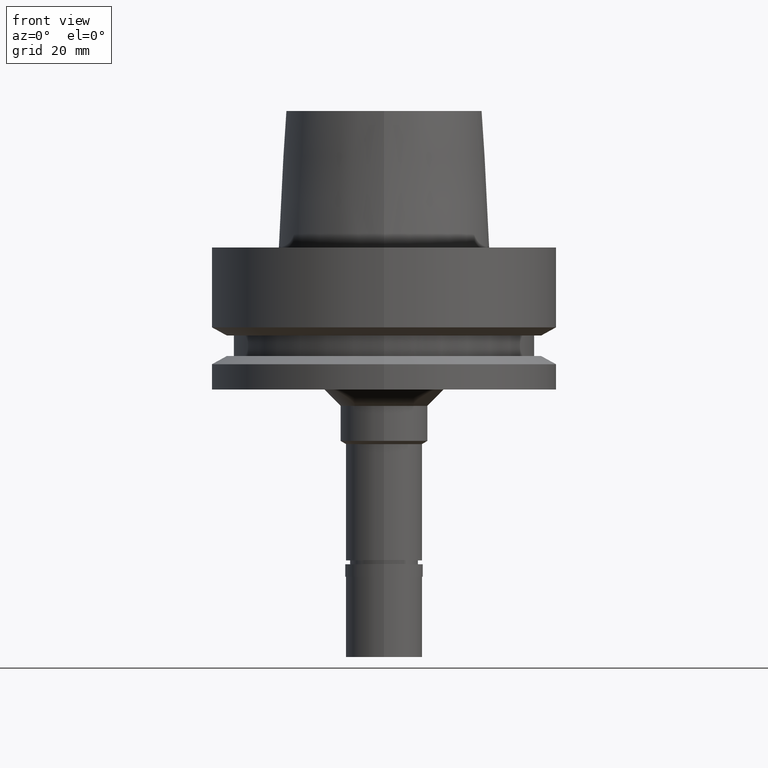
[diagram: clean part render]
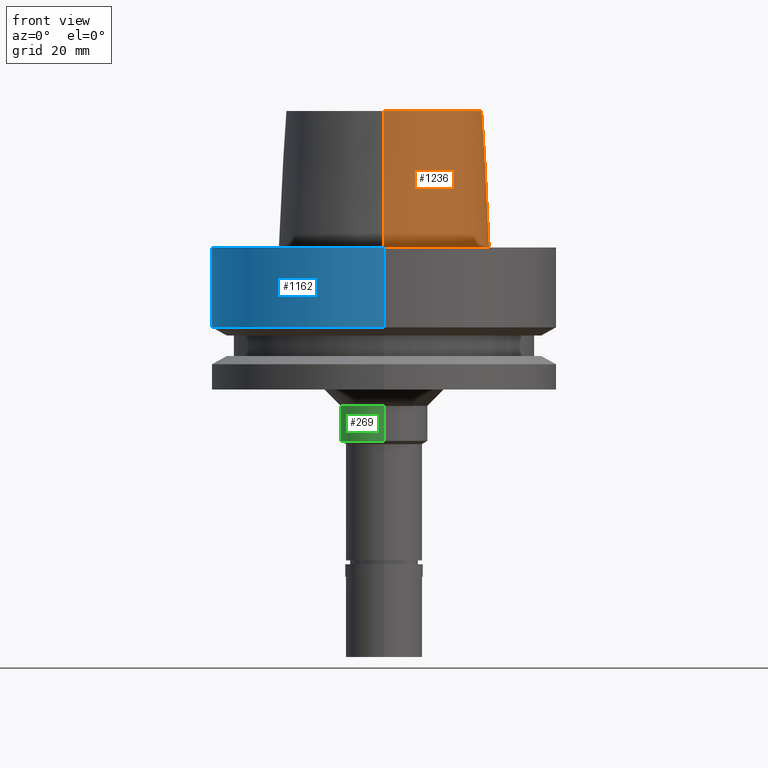
[diagram: same view with three faces highlighted in distinct colors, each labeled with its STEP entity id]
A machine part, front view with three faces highlighted in distinct colors.
Their STEP definitions:

[orange] entity #1236 — the highlighted conical surface has half-angle 2.862 deg.
#64 = ORIENTED_EDGE ( 'NONE', *, *, #2096, .T. ) ;
#105 = LINE ( 'NONE', #175, #1512 ) ;
#122 = DIRECTION ( 'NONE',  ( 0.0000000000000000000, 0.0000000000000000000, -1.000000000000000000 ) ) ;
#175 = CARTESIAN_POINT ( 'NONE',  ( 0.0000000000000000000, 18.00000182882000033, 25.00000000000000000 ) ) ;
#359 = DIRECTION ( 'NONE',  ( 0.0000000000000000000, 0.0000000000000000000, 1.000000000000000000 ) ) ;
#444 = DIRECTION ( 'NONE',  ( 0.0000000000000000000, -1.000000000000000000, 0.0000000000000000000 ) ) ;
#582 = AXIS2_PLACEMENT_3D ( 'NONE', #1969, #1698, #444 ) ;
#683 = LINE ( 'NONE', #1549, #1123 ) ;
#786 = VERTEX_POINT ( 'NONE', #2629 ) ;
#868 = CARTESIAN_POINT ( 'NONE',  ( 0.0000000000000000000, -19.24999954280000125, 3.410605131648000255E-13 ) ) ;
#988 = ORIENTED_EDGE ( 'NONE', *, *, #1504, .T. ) ;
#998 = EDGE_CURVE ( 'NONE', #1112, #1976, #105, .T. ) ;
#1019 = CARTESIAN_POINT ( 'NONE',  ( 0.0000000000000000000, 0.0000000000000000000, 5.115907697473000027E-13 ) ) ;
#1054 = DIRECTION ( 'NONE',  ( 0.0000000000000000000, 0.04993752584486958745, -0.9987523434327917338 ) ) ;
#1112 = VERTEX_POINT ( 'NONE', #2672 ) ;
#1123 = VECTOR ( 'NONE', #1300, 999.9999999999998863 ) ;
#1236 = ADVANCED_FACE ( 'NONE', ( #1296 ), #2258, .T. ) ;
#1296 = FACE_OUTER_BOUND ( 'NONE', #2313, .T. ) ;
#1300 = DIRECTION ( 'NONE',  ( 0.0000000000000000000, -0.04993752584486958745, -0.9987523434327917338 ) ) ;
#1301 = ORIENTED_EDGE ( 'NONE', *, *, #998, .F. ) ;
#1443 = ORIENTED_EDGE ( 'NONE', *, *, #2386, .T. ) ;
#1504 = EDGE_CURVE ( 'NONE', #2005, #1976, #2230, .T. ) ;
#1512 = VECTOR ( 'NONE', #1054, 999.9999999999998863 ) ;
#1549 = CARTESIAN_POINT ( 'NONE',  ( 0.0000000000000000000, -18.00000182882000033, 25.00000000000000000 ) ) ;
#1654 = CIRCLE ( 'NONE', #2535, 18.00000182882000033 ) ;
#1698 = DIRECTION ( 'NONE',  ( 0.0000000000000000000, 0.0000000000000000000, -1.000000000000000000 ) ) ;
#1782 = AXIS2_PLACEMENT_3D ( 'NONE', #1019, #359, #2485 ) ;
#1969 = CARTESIAN_POINT ( 'NONE',  ( 0.0000000000000000000, 0.0000000000000000000, 12.50000000000000000 ) ) ;
#1976 = VERTEX_POINT ( 'NONE', #2325 ) ;
#2005 = VERTEX_POINT ( 'NONE', #868 ) ;
#2096 = EDGE_CURVE ( 'NONE', #1112, #786, #1654, .T. ) ;
#2230 = CIRCLE ( 'NONE', #1782, 19.24999954280000125 ) ;
#2258 = CONICAL_SURFACE ( 'NONE', #582, 18.62500068580999724, 0.04995830450907576964 ) ;
#2313 = EDGE_LOOP ( 'NONE', ( #64, #1443, #988, #1301 ) ) ;
#2325 = CARTESIAN_POINT ( 'NONE',  ( 0.0000000000000000000, 19.24999954280000125, 3.410605131648000255E-13 ) ) ;
#2338 = CARTESIAN_POINT ( 'NONE',  ( 0.0000000000000000000, 0.0000000000000000000, 25.00000000000000000 ) ) ;
#2386 = EDGE_CURVE ( 'NONE', #786, #2005, #683, .T. ) ;
#2485 = DIRECTION ( 'NONE',  ( 0.0000000000000000000, -1.000000000000000000, 0.0000000000000000000 ) ) ;
#2535 = AXIS2_PLACEMENT_3D ( 'NONE', #2338, #122, #2746 ) ;
#2629 = CARTESIAN_POINT ( 'NONE',  ( 0.0000000000000000000, -18.00000182882000033, 25.00000000000000000 ) ) ;
#2672 = CARTESIAN_POINT ( 'NONE',  ( 0.0000000000000000000, 18.00000182882000033, 25.00000000000000000 ) ) ;
#2746 = DIRECTION ( 'NONE',  ( 0.0000000000000000000, 1.000000000000000000, 0.0000000000000000000 ) ) ;

[blue] entity #1162 — the highlighted cylindrical surface (partial cylindrical patch) has radius 31.5 mm, axis along (0, 0, 1).
#19 = CARTESIAN_POINT ( 'NONE',  ( 0.0000000000000000000, 0.0000000000000000000, -75.80000000000001137 ) ) ;
#29 = DIRECTION ( 'NONE',  ( 0.0000000000000000000, -4.130355870612999632E-14, -1.000000000000000000 ) ) ;
#30 = DIRECTION ( 'NONE',  ( 0.0000000000000000000, 1.000000000000000000, 0.0000000000000000000 ) ) ;
#40 = DIRECTION ( 'NONE',  ( 0.0000000000000000000, -1.000000000000000000, 0.0000000000000000000 ) ) ;
#91 = ORIENTED_EDGE ( 'NONE', *, *, #917, .T. ) ;
#198 = AXIS2_PLACEMENT_3D ( 'NONE', #451, #401, #30 ) ;
#251 = CARTESIAN_POINT ( 'NONE',  ( 0.0000000000000000000, 0.0000000000000000000, 1.705302565823999875E-13 ) ) ;
#288 = VERTEX_POINT ( 'NONE', #2385 ) ;
#401 = DIRECTION ( 'NONE',  ( 0.0000000000000000000, 0.0000000000000000000, 1.000000000000000000 ) ) ;
#406 = ORIENTED_EDGE ( 'NONE', *, *, #1514, .T. ) ;
#451 = CARTESIAN_POINT ( 'NONE',  ( 0.0000000000000000000, 0.0000000000000000000, -14.62250092523999889 ) ) ;
#573 = EDGE_CURVE ( 'NONE', #2098, #2155, #1118, .T. ) ;
#576 = CARTESIAN_POINT ( 'NONE',  ( 0.0000000000000000000, 31.50000000000000000, 1.042129345780999972E-13 ) ) ;
#681 = CYLINDRICAL_SURFACE ( 'NONE', #1809, 31.50000000000000000 ) ;
#783 = CARTESIAN_POINT ( 'NONE',  ( 0.0000000000000000000, -31.50000000000000000, 1.705302565823999875E-13 ) ) ;
#873 = DIRECTION ( 'NONE',  ( 0.0000000000000000000, 1.000000000000000000, 0.0000000000000000000 ) ) ;
#917 = EDGE_CURVE ( 'NONE', #2098, #288, #1821, .T. ) ;
#1031 = CARTESIAN_POINT ( 'NONE',  ( 0.0000000000000000000, 31.50000000000000000, -14.62250092523999889 ) ) ;
#1118 = LINE ( 'NONE', #1981, #1800 ) ;
#1129 = ORIENTED_EDGE ( 'NONE', *, *, #573, .F. ) ;
#1162 = ADVANCED_FACE ( 'NONE', ( #2375 ), #681, .T. ) ;
#1207 = LINE ( 'NONE', #576, #2684 ) ;
#1255 = CARTESIAN_POINT ( 'NONE',  ( 0.0000000000000000000, -31.50000000000000000, -14.62250092523999889 ) ) ;
#1514 = EDGE_CURVE ( 'NONE', #288, #2034, #1207, .T. ) ;
#1548 = DIRECTION ( 'NONE',  ( 0.0000000000000000000, 0.0000000000000000000, 1.000000000000000000 ) ) ;
#1623 = ORIENTED_EDGE ( 'NONE', *, *, #1861, .T. ) ;
#1800 = VECTOR ( 'NONE', #29, 1000.000000000000000 ) ;
#1809 = AXIS2_PLACEMENT_3D ( 'NONE', #19, #1548, #873 ) ;
#1821 = CIRCLE ( 'NONE', #2360, 31.50000000000000000 ) ;
#1861 = EDGE_CURVE ( 'NONE', #2034, #2155, #1882, .T. ) ;
#1882 = CIRCLE ( 'NONE', #198, 31.50000000000000000 ) ;
#1981 = CARTESIAN_POINT ( 'NONE',  ( 0.0000000000000000000, -31.50000000000000000, 1.042129345780999972E-13 ) ) ;
#2034 = VERTEX_POINT ( 'NONE', #1031 ) ;
#2098 = VERTEX_POINT ( 'NONE', #783 ) ;
#2155 = VERTEX_POINT ( 'NONE', #1255 ) ;
#2360 = AXIS2_PLACEMENT_3D ( 'NONE', #251, #2603, #40 ) ;
#2375 = FACE_OUTER_BOUND ( 'NONE', #2517, .T. ) ;
#2385 = CARTESIAN_POINT ( 'NONE',  ( 0.0000000000000000000, 31.50000000000000000, 1.705302565823999875E-13 ) ) ;
#2517 = EDGE_LOOP ( 'NONE', ( #1623, #1129, #91, #406 ) ) ;
#2537 = DIRECTION ( 'NONE',  ( 0.0000000000000000000, 4.130355870612999632E-14, -1.000000000000000000 ) ) ;
#2603 = DIRECTION ( 'NONE',  ( 0.0000000000000000000, 0.0000000000000000000, -1.000000000000000000 ) ) ;
#2684 = VECTOR ( 'NONE', #2537, 1000.000000000000000 ) ;

[green] entity #269 — the highlighted cylindrical surface (partial cylindrical patch) has radius 8 mm, axis along (0, 0, 1).
#15 = CARTESIAN_POINT ( 'NONE',  ( 0.0000000000000000000, 8.000000000000000000, -29.00000000000000000 ) ) ;
#61 = DIRECTION ( 'NONE',  ( 0.0000000000000000000, 0.0000000000000000000, 1.000000000000000000 ) ) ;
#103 = DIRECTION ( 'NONE',  ( 0.0000000000000000000, 1.000000000000000000, 0.0000000000000000000 ) ) ;
#141 = CYLINDRICAL_SURFACE ( 'NONE', #1363, 8.000000000000000000 ) ;
#269 = ADVANCED_FACE ( 'NONE', ( #574 ), #141, .T. ) ;
#320 = CARTESIAN_POINT ( 'NONE',  ( 0.0000000000000000000, 0.0000000000000000000, -35.42264973081000079 ) ) ;
#447 = ORIENTED_EDGE ( 'NONE', *, *, #2576, .T. ) ;
#569 = AXIS2_PLACEMENT_3D ( 'NONE', #2475, #1815, #1590 ) ;
#574 = FACE_OUTER_BOUND ( 'NONE', #1515, .T. ) ;
#637 = EDGE_CURVE ( 'NONE', #2477, #1773, #1965, .T. ) ;
#731 = VERTEX_POINT ( 'NONE', #2063 ) ;
#767 = CARTESIAN_POINT ( 'NONE',  ( 0.0000000000000000000, 8.000000000000000000, -29.00000000000000000 ) ) ;
#800 = CIRCLE ( 'NONE', #2293, 8.000000000002000178 ) ;
#812 = ORIENTED_EDGE ( 'NONE', *, *, #972, .F. ) ;
#939 = VECTOR ( 'NONE', #1611, 1000.000000000000000 ) ;
#972 = EDGE_CURVE ( 'NONE', #2481, #731, #2489, .T. ) ;
#1029 = CIRCLE ( 'NONE', #569, 8.000000000000000000 ) ;
#1154 = ORIENTED_EDGE ( 'NONE', *, *, #637, .T. ) ;
#1198 = CARTESIAN_POINT ( 'NONE',  ( 0.0000000000000000000, -8.000000000000000000, -29.00000000000000000 ) ) ;
#1363 = AXIS2_PLACEMENT_3D ( 'NONE', #2522, #1517, #2550 ) ;
#1515 = EDGE_LOOP ( 'NONE', ( #447, #812, #2628, #1154 ) ) ;
#1517 = DIRECTION ( 'NONE',  ( 0.0000000000000000000, 0.0000000000000000000, 1.000000000000000000 ) ) ;
#1554 = VECTOR ( 'NONE', #2478, 1000.000000000000000 ) ;
#1590 = DIRECTION ( 'NONE',  ( 0.0000000000000000000, -1.000000000000000000, 0.0000000000000000000 ) ) ;
#1611 = DIRECTION ( 'NONE',  ( 0.0000000000000000000, 1.747966290477999900E-13, -1.000000000000000000 ) ) ;
#1773 = VERTEX_POINT ( 'NONE', #2387 ) ;
#1815 = DIRECTION ( 'NONE',  ( 0.0000000000000000000, 0.0000000000000000000, -1.000000000000000000 ) ) ;
#1965 = LINE ( 'NONE', #15, #939 ) ;
#2063 = CARTESIAN_POINT ( 'NONE',  ( 0.0000000000000000000, -8.000000000002000178, -35.42264973081000079 ) ) ;
#2293 = AXIS2_PLACEMENT_3D ( 'NONE', #320, #61, #103 ) ;
#2387 = CARTESIAN_POINT ( 'NONE',  ( 0.0000000000000000000, 8.000000000001000089, -35.42264973081000079 ) ) ;
#2475 = CARTESIAN_POINT ( 'NONE',  ( 0.0000000000000000000, 0.0000000000000000000, -29.00000000000000000 ) ) ;
#2477 = VERTEX_POINT ( 'NONE', #767 ) ;
#2478 = DIRECTION ( 'NONE',  ( 0.0000000000000000000, -1.747966290477999900E-13, -1.000000000000000000 ) ) ;
#2481 = VERTEX_POINT ( 'NONE', #2653 ) ;
#2489 = LINE ( 'NONE', #1198, #1554 ) ;
#2522 = CARTESIAN_POINT ( 'NONE',  ( 0.0000000000000000000, 0.0000000000000000000, -75.80000000000001137 ) ) ;
#2530 = EDGE_CURVE ( 'NONE', #2481, #2477, #1029, .T. ) ;
#2550 = DIRECTION ( 'NONE',  ( 0.0000000000000000000, 1.000000000000000000, 0.0000000000000000000 ) ) ;
#2576 = EDGE_CURVE ( 'NONE', #1773, #731, #800, .T. ) ;
#2628 = ORIENTED_EDGE ( 'NONE', *, *, #2530, .T. ) ;
#2653 = CARTESIAN_POINT ( 'NONE',  ( 0.0000000000000000000, -8.000000000000000000, -29.00000000000000000 ) ) ;